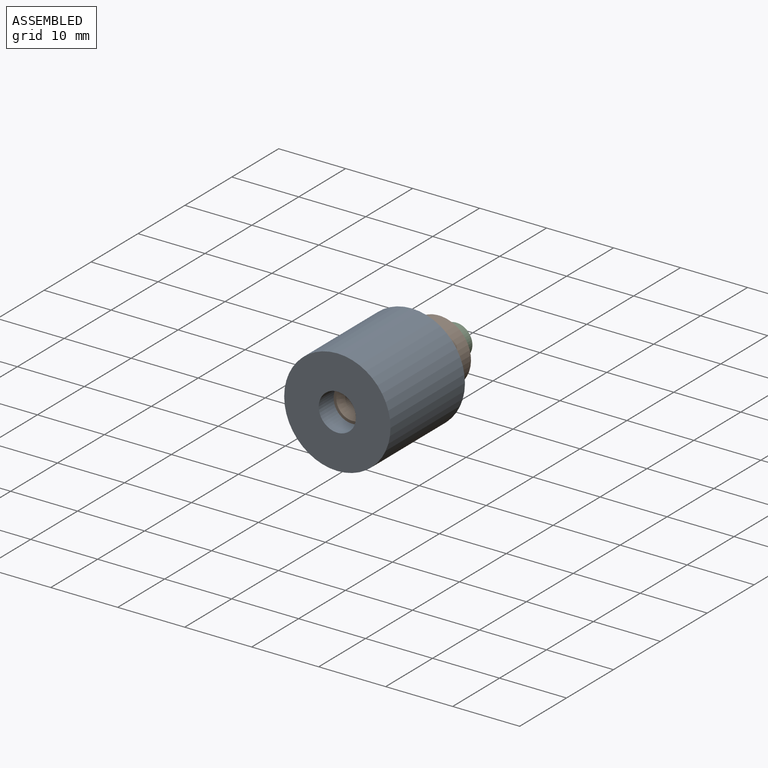
[diagram: assembled view]
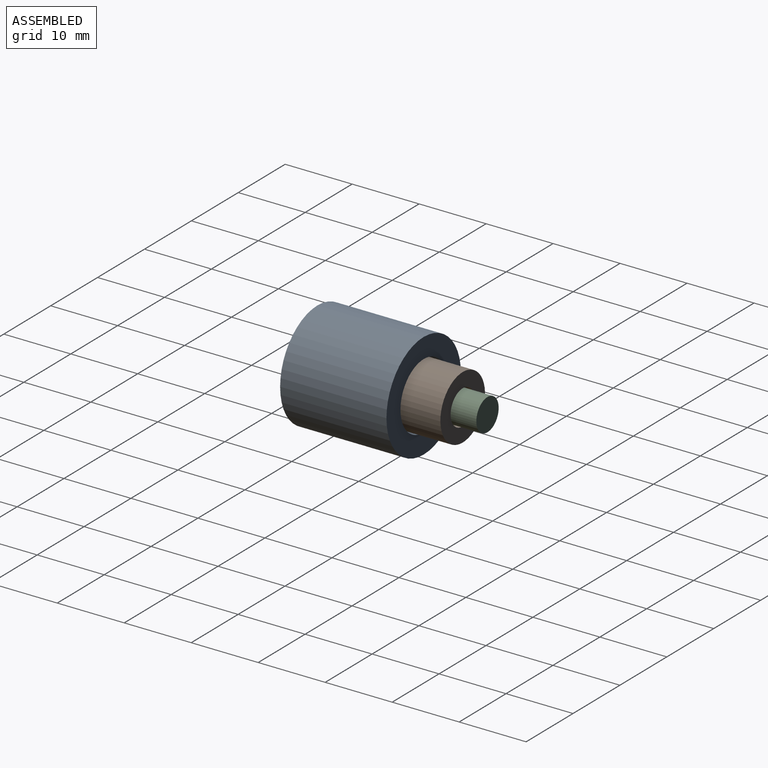
[diagram: assembled view, second angle]
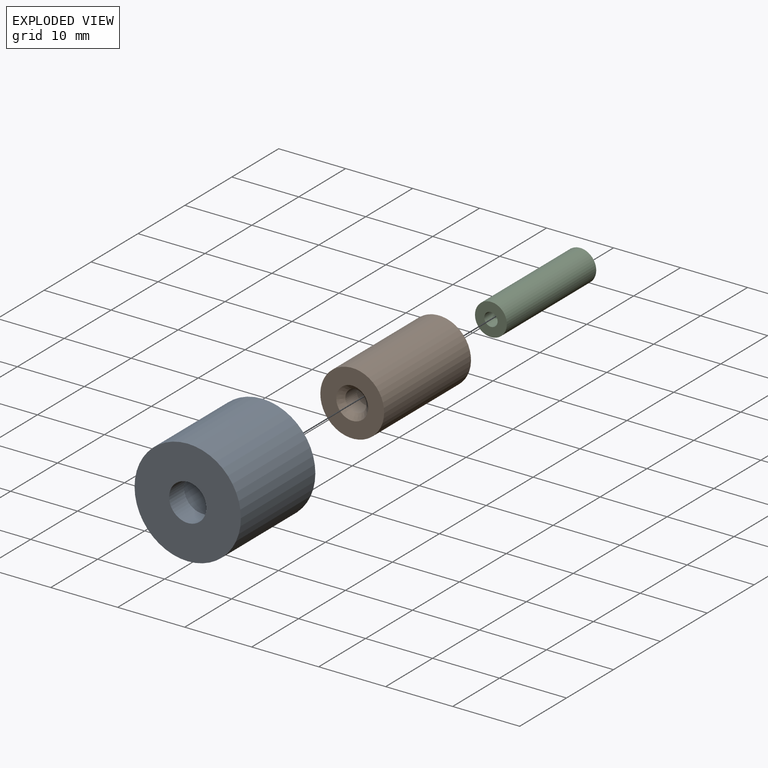
[diagram: exploded view]
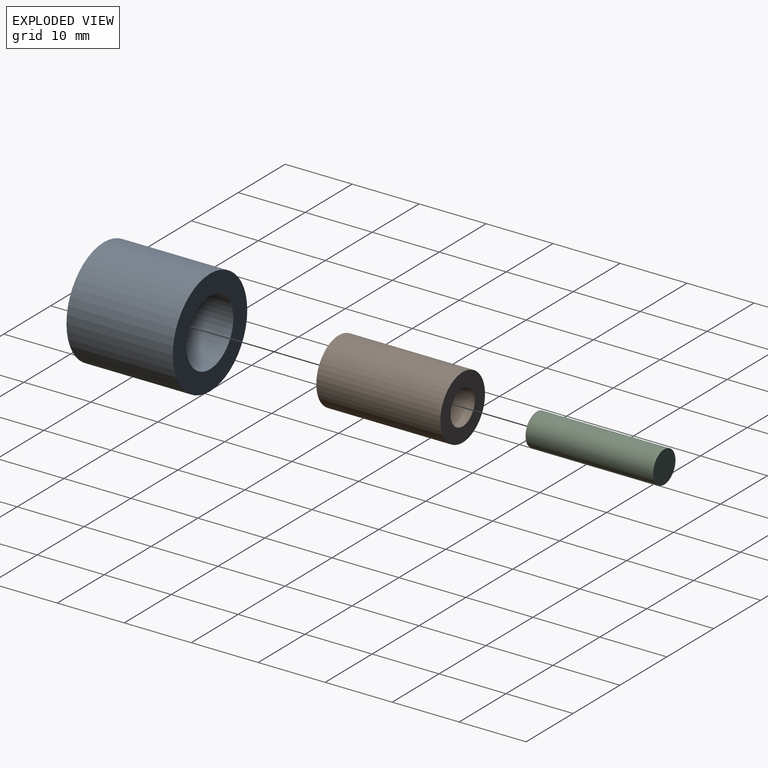
[diagram: exploded view, second angle]
ASSEMBLY  parts=3 mates=2
PART A: 8 faces, bbox 15.9x15.9x15.9 mm
  f0: plane 9.53x9.53mm, normal (0,-1,0), area 47mm2, adj f4,f6
  f1: cylinder r=4.96mm len=9.92mm, axis (0,1,0), area 296.9mm2, adj f3,f7
  f2: cylinder r=7.94mm len=15.88mm, axis (0,1,0), area 791.7mm2, adj f3,f5
  f3: plane 15.88x15.88mm, normal (0,-1,0), area 120.6mm2, adj f1,f2
  f4: cylinder r=2.78mm len=5.56mm, axis (0,-1,0), area 55.4mm2, adj f0,f5
  f5: plane 15.88x15.88mm, normal (0,1,0), area 173.7mm2, adj f2,f4
  f6: cylinder r=4.76mm len=9.53mm, axis (0,1,0), area 95mm2, adj f0,f7
  f7: plane 9.92x9.92mm, normal (0,-1,0), area 6.1mm2, adj f1,f6
PART B: 7 faces, bbox 9.5x18.5x9.5 mm
  f0: cylinder r=2.58mm len=15.35mm, axis (0,1,0), area 248.8mm2, adj f2,f3
  f1: cylinder r=4.76mm len=18.53mm, axis (0,1,0), area 554.3mm2, adj f2,f5
  f2: plane 9.53x9.53mm, normal (0,-1,0), area 50.3mm2, adj f0,f1
  f3: plane 5.16x5.16mm, normal (0,-1,0), area 13mm2, adj f0,f4
  f4: cylinder r=1.59mm len=3.18mm, axis (0,-1,0), area 23.8mm2, adj f3,f6
  f5: plane 9.53x9.53mm, normal (0,1,0), area 53.4mm2, adj f1,f6
  f6: cone r=2.38mm half-angle=45deg, axis (0,1,0), area 14mm2, adj f4,f5
PART C: 5 faces, bbox 4.8x19.1x4.8 mm
  f0: cylinder r=2.38mm len=19.05mm, axis (0,1,0), area 285mm2, adj f1,f2
  f1: plane 4.76x4.76mm, normal (0,-1,0), area 17.8mm2, adj f0
  f2: plane 4.76x4.76mm, normal (0,1,0), area 14.7mm2, adj f0,f3
  f3: cylinder r=1mm len=3.18mm, axis (0,1,0), area 19.9mm2, adj f2,f4
  f4: cone r=0mm half-angle=59deg, axis (0,1,0), area 3.6mm2, adj f3
PLACE A rot(axis=(1,0,0),180deg) t=(38.47,0,-12.42)mm
PLACE B rot(axis=(0.29,0,-0.96),180deg) t=(37.6,3.18,-20.11)mm
PLACE C rot(axis=(0.29,0,-0.96),180deg) t=(-15.51,3.18,-48.12)mm
MATE revolute A.f1 <-> B.f0  axis (0,1,0) through (0,0,0)mm
MATE revolute B.f0 <-> C.f0  axis (0,1,0) through (0,3.18,0)mm
